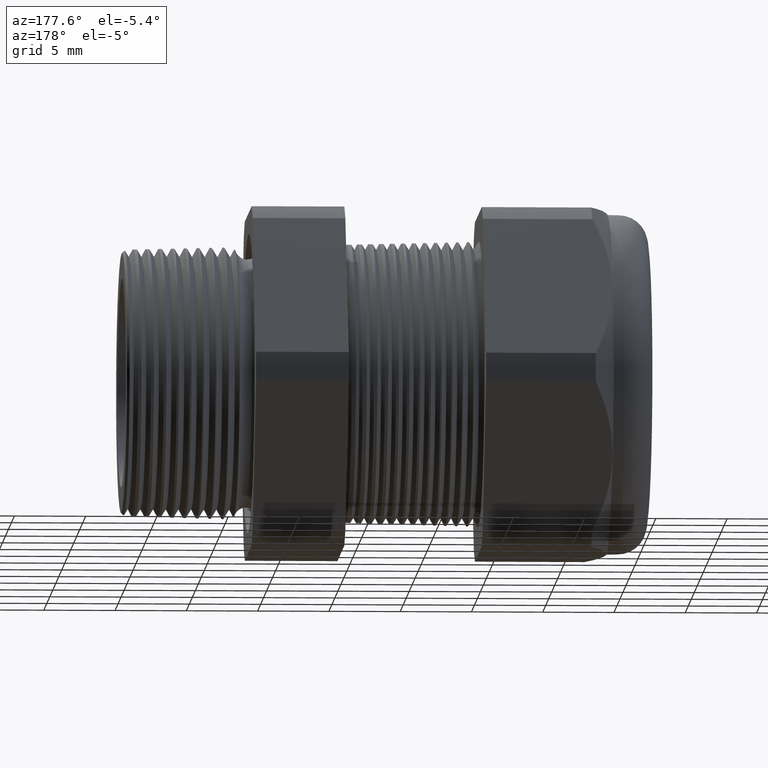
[diagram: clean part render]
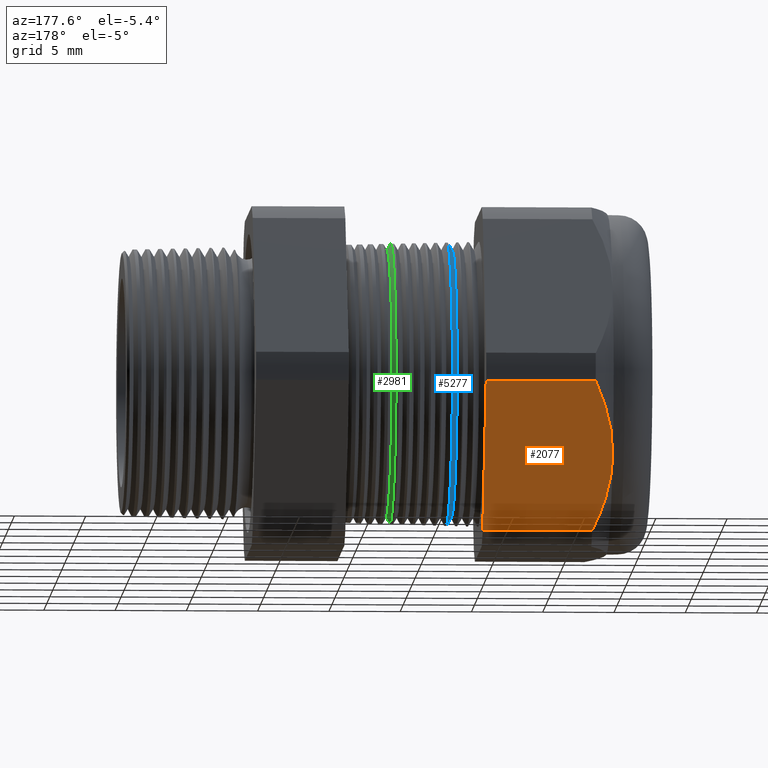
[diagram: same view with three faces highlighted in distinct colors, each labeled with its STEP entity id]
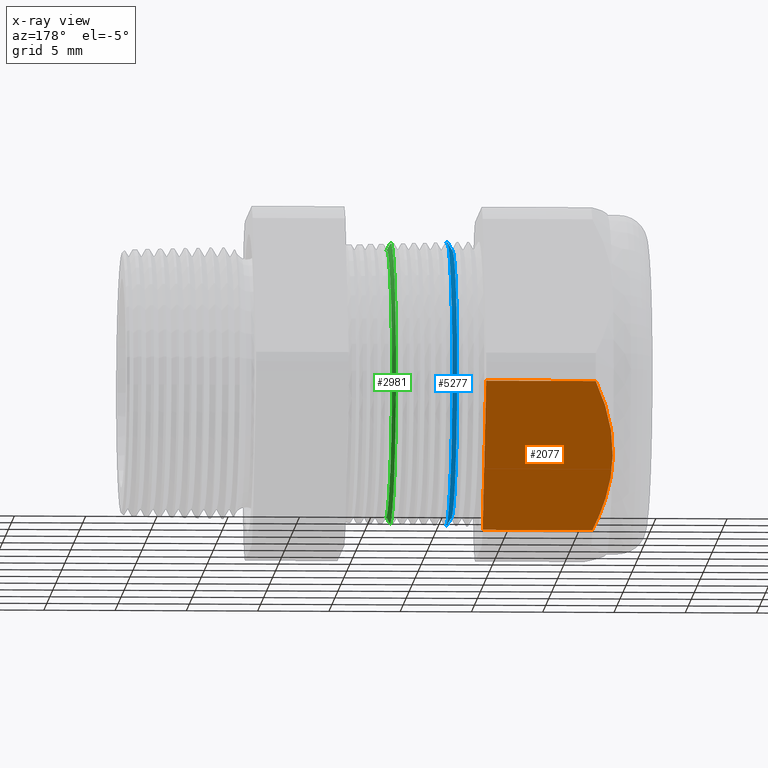
[diagram: x-ray of the same camera — body ghosted, the three highlighted faces saturated]
A machine part, auxiliary view with three faces highlighted in distinct colors.
The next image is the same camera in x-ray (body ghosted, the three faces saturated) — at least one of them is partly hidden behind the body in this view.
Their STEP definitions:

[orange] entity #2077 — the highlighted planar face has unit normal (0, 0.866, -0.5).
#1844 = VERTEX_POINT ( 'NONE', #4200 ) ;
#2077 = ADVANCED_FACE ( 'NONE', ( #4585 ), #4584, .T. ) ;
#2078 = EDGE_LOOP ( 'NONE', ( #2079, #2083, #2085, #2088, #2091 ) ) ;
#2079 = ORIENTED_EDGE ( 'NONE', *, *, #2080, .T. ) ;
#2080 = EDGE_CURVE ( 'NONE', #2081, #2082, #4579, .T. ) ;
#2081 = VERTEX_POINT ( 'NONE', #4637 ) ;
#2082 = VERTEX_POINT ( 'NONE', #4636 ) ;
#2083 = ORIENTED_EDGE ( 'NONE', *, *, #2084, .T. ) ;
#2084 = EDGE_CURVE ( 'NONE', #2082, #1844, #4635, .T. ) ;
#2085 = ORIENTED_EDGE ( 'NONE', *, *, #2086, .T. ) ;
#2086 = EDGE_CURVE ( 'NONE', #1844, #2087, #4634, .T. ) ;
#2087 = VERTEX_POINT ( 'NONE', #4633 ) ;
#2088 = ORIENTED_EDGE ( 'NONE', *, *, #2089, .F. ) ;
#2089 = EDGE_CURVE ( 'NONE', #2090, #2087, #4616, .T. ) ;
#2090 = VERTEX_POINT ( 'NONE', #4612 ) ;
#2091 = ORIENTED_EDGE ( 'NONE', *, *, #2143, .F. ) ;
#2143 = EDGE_CURVE ( 'NONE', #2081, #2090, #4747, .T. ) ;
#4200 = CARTESIAN_POINT ( 'NONE',  ( -1.299763779527559200, 0.4070319397786864000, -0.2350000000000000100 ) ) ;
#4578 = CARTESIAN_POINT ( 'NONE',  ( 0.03999999999999984800, 0.2938165587564948700, -0.4310947921287048800 ) ) ;
#4579 = LINE ( 'NONE', #4578, #4639 ) ;
#4580 = DIRECTION ( 'NONE',  ( 0.0000000000000000000, 0.4999999999999998300, 0.8660254037844388200 ) ) ;
#4581 = DIRECTION ( 'NONE',  ( 0.0000000000000000000, 0.8660254037844388200, -0.4999999999999998300 ) ) ;
#4582 = CARTESIAN_POINT ( 'NONE',  ( 0.03999999999999984800, 0.5202473208008777700, -0.03890520787129496400 ) ) ;
#4583 = AXIS2_PLACEMENT_3D ( 'NONE', #4582, #4581, #4580 ) ;
#4584 = PLANE ( 'NONE',  #4583 ) ;
#4585 = FACE_OUTER_BOUND ( 'NONE', #2078, .T. ) ;
#4612 = CARTESIAN_POINT ( 'NONE',  ( -0.9454330708661418100, 0.5202473208008776600, -0.03890520787129496400 ) ) ;
#4613 = DIRECTION ( 'NONE',  ( -1.000000000000000000, 0.0000000000000000000, 0.0000000000000000000 ) ) ;
#4614 = VECTOR ( 'NONE', #4613, 39.37007874015748100 ) ;
#4615 = CARTESIAN_POINT ( 'NONE',  ( 0.03999999999999984800, 0.5202473208008777700, -0.03890520787129496400 ) ) ;
#4616 = LINE ( 'NONE', #4615, #4614 ) ;
#4617 = CARTESIAN_POINT ( 'NONE',  ( -1.248063779527559100, 0.5202473208008777700, -0.03890520787129497100 ) ) ;
#4618 = CARTESIAN_POINT ( 'NONE',  ( -1.263717189021966500, 0.5022144712456754200, -0.07013901950615127100 ) ) ;
#4619 = CARTESIAN_POINT ( 'NONE',  ( -1.276822062588142100, 0.4835762490957484200, -0.1024213672325805200 ) ) ;
#4620 = CARTESIAN_POINT ( 'NONE',  ( -1.294818111347315200, 0.4458197490082083700, -0.1678175437001784800 ) ) ;
#4621 = CARTESIAN_POINT ( 'NONE',  ( -1.299763779527558500, 0.4266212606411439200, -0.2010703009804540900 ) ) ;
#4622 = CARTESIAN_POINT ( 'NONE',  ( -1.299763779527559200, 0.4070319397786864000, -0.2350000000000000100 ) ) ;
#4623 = CARTESIAN_POINT ( 'NONE',  ( -1.299763779527559200, 0.4070319397786864000, -0.2350000000000000100 ) ) ;
#4624 = CARTESIAN_POINT ( 'NONE',  ( -1.299763779527558900, 0.4021312490570416200, -0.2434882453220695600 ) ) ;
#4625 = CARTESIAN_POINT ( 'NONE',  ( -1.299453644849873200, 0.3971857355050536500, -0.2520541260636330900 ) ) ;
#4626 = CARTESIAN_POINT ( 'NONE',  ( -1.298221849142434700, 0.3873598765596236700, -0.2690730129851234300 ) ) ;
#4627 = CARTESIAN_POINT ( 'NONE',  ( -1.297304216752655800, 0.3824845463488701900, -0.2775173326138242200 ) ) ;
#4628 = CARTESIAN_POINT ( 'NONE',  ( -1.293700751481475100, 0.3679645453500629500, -0.3026667120697089700 ) ) ;
#4629 = CARTESIAN_POINT ( 'NONE',  ( -1.290164085422760700, 0.3584258972266239900, -0.3191881352550264800 ) ) ;
#4630 = CARTESIAN_POINT ( 'NONE',  ( -1.276620445010038000, 0.3301755151959552300, -0.3681192322653758500 ) ) ;
#4631 = CARTESIAN_POINT ( 'NONE',  ( -1.263697825203294900, 0.3118271010418954300, -0.3998996178185232900 ) ) ;
#4632 = CARTESIAN_POINT ( 'NONE',  ( -1.248063779527559100, 0.2938165587564948700, -0.4310947921287048800 ) ) ;
#4633 = CARTESIAN_POINT ( 'NONE',  ( -1.248063779527559100, 0.5202473208008777700, -0.03890520787129497100 ) ) ;
#4634 = B_SPLINE_CURVE_WITH_KNOTS ( 'NONE', 3,
 ( #4622, #4621, #4620, #4619, #4618, #4617 ),
 .UNSPECIFIED., .F., .F.,
 ( 4, 2, 4 ),
 ( 0.005903107334592311600, 0.008852512982428775400, 0.01180191863026523900 ),
 .UNSPECIFIED. ) ;
#4635 = B_SPLINE_CURVE_WITH_KNOTS ( 'NONE', 3,
 ( #4632, #4631, #4630, #4629, #4628, #4627, #4626, #4625, #4624, #4623 ),
 .UNSPECIFIED., .F., .F.,
 ( 4, 2, 2, 2, 4 ),
 ( 2.483251536698716100E-007, 0.002951677829872994700, 0.004427392582232654900, 0.005165249958412482400, 0.005903107334592311600 ),
 .UNSPECIFIED. ) ;
#4636 = CARTESIAN_POINT ( 'NONE',  ( -1.248063779527559100, 0.2938165587564948700, -0.4310947921287048800 ) ) ;
#4637 = CARTESIAN_POINT ( 'NONE',  ( -0.9454330708661418100, 0.2938165587564948700, -0.4310947921287048800 ) ) ;
#4638 = DIRECTION ( 'NONE',  ( -1.000000000000000000, 0.0000000000000000000, 0.0000000000000000000 ) ) ;
#4639 = VECTOR ( 'NONE', #4638, 39.37007874015748100 ) ;
#4740 = DIRECTION ( 'NONE',  ( 0.0000000000000000000, 0.4999999999999998300, 0.8660254037844388200 ) ) ;
#4741 = VECTOR ( 'NONE', #4740, 39.37007874015748100 ) ;
#4742 = CARTESIAN_POINT ( 'NONE',  ( -0.9454330708661418100, 0.5057819397786861300, -0.06395998275257334900 ) ) ;
#4747 = LINE ( 'NONE', #4742, #4741 ) ;

[blue] entity #5277 — the highlighted conical surface has half-angle 58.5 deg.
#1132 = DIRECTION ( 'NONE',  ( 0.5224985647159373600, 0.0000000000000000000, -0.8526401643540992800 ) ) ;
#1133 = VECTOR ( 'NONE', #1132, 39.37007874015748100 ) ;
#1134 = CARTESIAN_POINT ( 'NONE',  ( -0.8716586839320377100, 0.0000000000000000000, -0.3696307351718083900 ) ) ;
#1135 = LINE ( 'NONE', #1134, #1133 ) ;
#1153 = CARTESIAN_POINT ( 'NONE',  ( -0.8575230488926602900, 0.0000000000000000000, 0.3926979950594575700 ) ) ;
#1155 = CARTESIAN_POINT ( 'NONE',  ( -0.8575230488926602900, 4.809163426811478100E-017, -0.3926979950594575700 ) ) ;
#1156 = DIRECTION ( 'NONE',  ( 0.0000000000000000000, 0.0000000000000000000, -1.000000000000000000 ) ) ;
#1157 = DIRECTION ( 'NONE',  ( -1.000000000000000000, 0.0000000000000000000, 0.0000000000000000000 ) ) ;
#1158 = CARTESIAN_POINT ( 'NONE',  ( -0.8575230488926602900, 0.0000000000000000000, 0.0000000000000000000 ) ) ;
#1159 = AXIS2_PLACEMENT_3D ( 'NONE', #1158, #1157, #1156 ) ;
#1160 = CIRCLE ( 'NONE', #1159, 0.3926979950594575700 ) ;
#1201 = DIRECTION ( 'NONE',  ( 0.0000000000000000000, 0.0000000000000000000, -1.000000000000000000 ) ) ;
#1202 = DIRECTION ( 'NONE',  ( 1.000000000000000000, 0.0000000000000000000, 0.0000000000000000000 ) ) ;
#1203 = AXIS2_PLACEMENT_3D ( 'NONE', #1205, #1202, #1201 ) ;
#1204 = CONICAL_SURFACE ( 'NONE', #1203, 0.3696307351718083900, 1.021017612416696300 ) ;
#1205 = CARTESIAN_POINT ( 'NONE',  ( -0.8716586839320377100, 0.0000000000000000000, 0.0000000000000000000 ) ) ;
#1206 = DIRECTION ( 'NONE',  ( 0.0000000000000000000, 0.0000000000000000000, -1.000000000000000000 ) ) ;
#1207 = DIRECTION ( 'NONE',  ( 1.000000000000000000, 0.0000000000000000000, 0.0000000000000000000 ) ) ;
#1208 = CARTESIAN_POINT ( 'NONE',  ( -0.8716586839320377100, 0.0000000000000000000, 0.0000000000000000000 ) ) ;
#1209 = AXIS2_PLACEMENT_3D ( 'NONE', #1208, #1207, #1206 ) ;
#1210 = CIRCLE ( 'NONE', #1209, 0.3696307351718083900 ) ;
#1211 = FACE_OUTER_BOUND ( 'NONE', #5275, .T. ) ;
#1212 = CARTESIAN_POINT ( 'NONE',  ( -0.8716586839320377100, 0.0000000000000000000, 0.3696307351718083900 ) ) ;
#1213 = CARTESIAN_POINT ( 'NONE',  ( -0.8716586839320377100, 4.672253604444747300E-017, -0.3696307351718083900 ) ) ;
#1214 = DIRECTION ( 'NONE',  ( 0.5224985647159373600, 1.044183048100720900E-016, 0.8526401643540992800 ) ) ;
#1215 = VECTOR ( 'NONE', #1214, 39.37007874015748100 ) ;
#1216 = CARTESIAN_POINT ( 'NONE',  ( -0.8716586839320377100, 4.526670966946381200E-017, 0.3696307351718083900 ) ) ;
#1217 = LINE ( 'NONE', #1216, #1215 ) ;
#5246 = EDGE_CURVE ( 'NONE', #5272, #5265, #1135, .T. ) ;
#5264 = EDGE_CURVE ( 'NONE', #5269, #5265, #1160, .T. ) ;
#5265 = VERTEX_POINT ( 'NONE', #1155 ) ;
#5266 = ORIENTED_EDGE ( 'NONE', *, *, #5246, .F. ) ;
#5268 = ORIENTED_EDGE ( 'NONE', *, *, #5264, .T. ) ;
#5269 = VERTEX_POINT ( 'NONE', #1153 ) ;
#5270 = ORIENTED_EDGE ( 'NONE', *, *, #5271, .T. ) ;
#5271 = EDGE_CURVE ( 'NONE', #5273, #5269, #1217, .T. ) ;
#5272 = VERTEX_POINT ( 'NONE', #1213 ) ;
#5273 = VERTEX_POINT ( 'NONE', #1212 ) ;
#5274 = EDGE_CURVE ( 'NONE', #5272, #5273, #1210, .T. ) ;
#5275 = EDGE_LOOP ( 'NONE', ( #5276, #5270, #5268, #5266 ) ) ;
#5276 = ORIENTED_EDGE ( 'NONE', *, *, #5274, .T. ) ;
#5277 = ADVANCED_FACE ( 'NONE', ( #1211 ), #1204, .T. ) ;

[green] entity #2981 — the highlighted conical surface has half-angle 61.5 deg.
#835 = CARTESIAN_POINT ( 'NONE',  ( -0.6916586839320377800, 0.0000000000000000000, 0.3696307351718083900 ) ) ;
#902 = CARTESIAN_POINT ( 'NONE',  ( -0.6916586839320377800, 4.642975682411349600E-017, -0.3696307351718083900 ) ) ;
#903 = DIRECTION ( 'NONE',  ( 0.0000000000000000000, 0.0000000000000000000, -1.000000000000000000 ) ) ;
#904 = DIRECTION ( 'NONE',  ( 1.000000000000000000, 0.0000000000000000000, 0.0000000000000000000 ) ) ;
#905 = CARTESIAN_POINT ( 'NONE',  ( -0.6916586839320377800, 0.0000000000000000000, 0.0000000000000000000 ) ) ;
#906 = AXIS2_PLACEMENT_3D ( 'NONE', #905, #904, #903 ) ;
#907 = CIRCLE ( 'NONE', #906, 0.3696307351718083900 ) ;
#932 = CIRCLE ( 'NONE', #996, 0.3886247366334452100 ) ;
#933 = CARTESIAN_POINT ( 'NONE',  ( -0.7019715852845746000, 4.760550384735148200E-017, -0.3886247366334452100 ) ) ;
#934 = DIRECTION ( 'NONE',  ( -0.4771587602596201200, 1.076240564057387000E-016, -0.8788171126619589400 ) ) ;
#935 = VECTOR ( 'NONE', #934, 39.37007874015748100 ) ;
#936 = CARTESIAN_POINT ( 'NONE',  ( -0.7054330708661417100, 4.837354856632045600E-017, -0.3950000000000000200 ) ) ;
#942 = LINE ( 'NONE', #936, #935 ) ;
#944 = DIRECTION ( 'NONE',  ( -0.4771587602596201200, 0.0000000000000000000, 0.8788171126619589400 ) ) ;
#945 = VECTOR ( 'NONE', #944, 39.37007874015748100 ) ;
#946 = CARTESIAN_POINT ( 'NONE',  ( -0.7054330708661417100, 0.0000000000000000000, 0.3950000000000000200 ) ) ;
#952 = LINE ( 'NONE', #946, #945 ) ;
#973 = DIRECTION ( 'NONE',  ( 0.0000000000000000000, 0.0000000000000000000, 1.000000000000000000 ) ) ;
#974 = DIRECTION ( 'NONE',  ( -1.000000000000000000, 0.0000000000000000000, 0.0000000000000000000 ) ) ;
#975 = AXIS2_PLACEMENT_3D ( 'NONE', #977, #974, #973 ) ;
#976 = CONICAL_SURFACE ( 'NONE', #975, 0.3950000000000000200, 1.073377489976499400 ) ;
#977 = CARTESIAN_POINT ( 'NONE',  ( -0.7054330708661417100, 0.0000000000000000000, 0.0000000000000000000 ) ) ;
#978 = FACE_OUTER_BOUND ( 'NONE', #2982, .T. ) ;
#992 = CARTESIAN_POINT ( 'NONE',  ( -0.7019715852845746000, 0.0000000000000000000, 0.3886247366334452100 ) ) ;
#993 = DIRECTION ( 'NONE',  ( 0.0000000000000000000, 0.0000000000000000000, 1.000000000000000000 ) ) ;
#994 = DIRECTION ( 'NONE',  ( 1.000000000000000000, 0.0000000000000000000, 0.0000000000000000000 ) ) ;
#995 = CARTESIAN_POINT ( 'NONE',  ( -0.7019715852845746000, 0.0000000000000000000, 0.0000000000000000000 ) ) ;
#996 = AXIS2_PLACEMENT_3D ( 'NONE', #995, #994, #993 ) ;
#2900 = ORIENTED_EDGE ( 'NONE', *, *, #2953, .F. ) ;
#2901 = ORIENTED_EDGE ( 'NONE', *, *, #2964, .T. ) ;
#2902 = VERTEX_POINT ( 'NONE', #835 ) ;
#2953 = EDGE_CURVE ( 'NONE', #2954, #2902, #907, .T. ) ;
#2954 = VERTEX_POINT ( 'NONE', #902 ) ;
#2960 = EDGE_CURVE ( 'NONE', #2902, #2968, #952, .T. ) ;
#2964 = EDGE_CURVE ( 'NONE', #2954, #2965, #942, .T. ) ;
#2965 = VERTEX_POINT ( 'NONE', #933 ) ;
#2966 = ORIENTED_EDGE ( 'NONE', *, *, #2967, .T. ) ;
#2967 = EDGE_CURVE ( 'NONE', #2965, #2968, #932, .T. ) ;
#2968 = VERTEX_POINT ( 'NONE', #992 ) ;
#2969 = ORIENTED_EDGE ( 'NONE', *, *, #2960, .F. ) ;
#2981 = ADVANCED_FACE ( 'NONE', ( #978 ), #976, .T. ) ;
#2982 = EDGE_LOOP ( 'NONE', ( #2900, #2901, #2966, #2969 ) ) ;